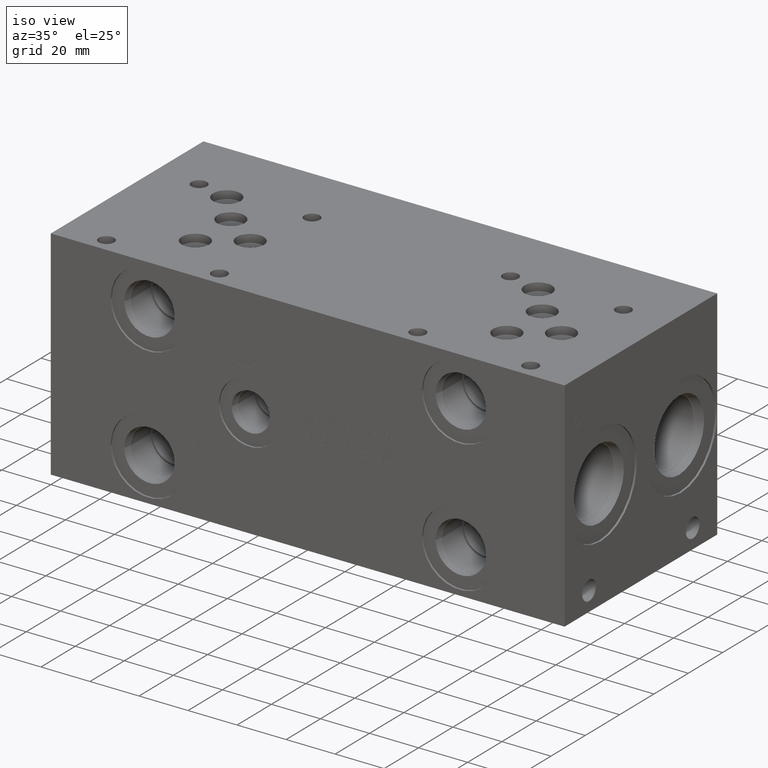
[diagram: clean part render]
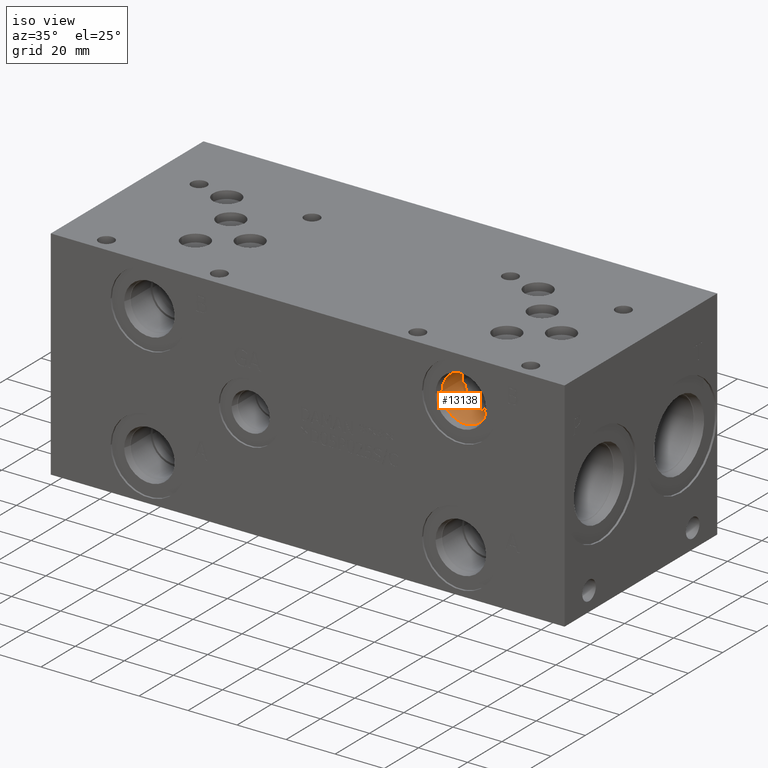
[diagram: same view with one face highlighted and labeled with its STEP entity id]
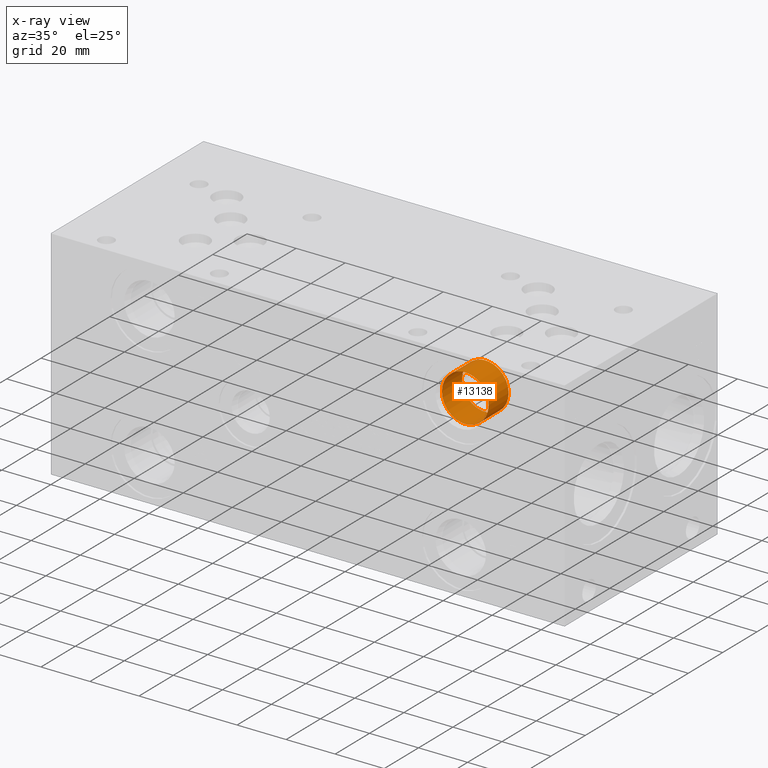
[diagram: x-ray of the same camera — body ghosted, the highlighted face saturated]
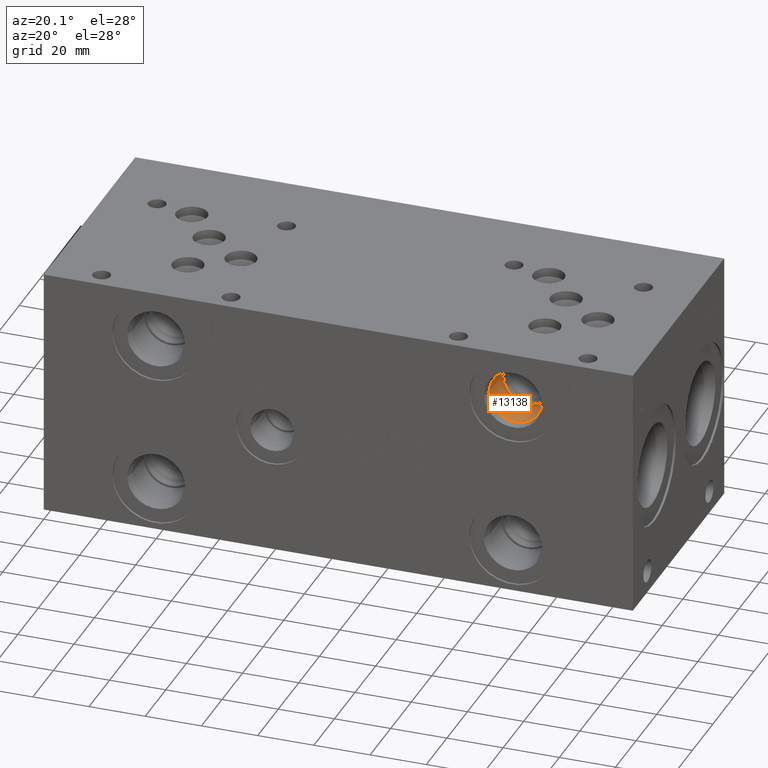
[diagram: same view with one face highlighted and labeled with its STEP entity id]
A machine part, iso view. The second image highlights one B-rep face of the part: STEP entity #13138.
The next image is the same camera in x-ray: the body ghosted, the highlighted face saturated — about 0% of this face is hidden behind the body in this view.
A second angle (auxiliary view) of the same face is appended — the face is thin or edge-on in the first view.
In plain terms, the highlighted cylindrical surface (bore or boss wall) has radius 9.525 mm, axis along (0, -1, 0).
Its self-contained STEP definition (entity closure, byte-faithful):
#123=CYLINDRICAL_SURFACE('',#13858,9.525);
#328=CIRCLE('',#13811,9.525);
#354=CIRCLE('',#13855,9.525);
#355=CIRCLE('',#13856,9.525);
#1714=FACE_OUTER_BOUND('',#2475,.T.);
#2475=EDGE_LOOP('',(#11288,#11289,#11290,#11291,#11292));
#3688=LINE('',#22538,#4856);
#4856=VECTOR('',#16424,9.525);
#6011=VERTEX_POINT('',#22441);
#6041=VERTEX_POINT('',#22531);
#6042=VERTEX_POINT('',#22532);
#7792=EDGE_CURVE('',#6011,#6011,#328,.T.);
#7833=EDGE_CURVE('',#6041,#6042,#354,.T.);
#7834=EDGE_CURVE('',#6042,#6041,#355,.T.);
#7836=EDGE_CURVE('',#6011,#6042,#3688,.T.);
#11288=ORIENTED_EDGE('',*,*,#7792,.T.);
#11289=ORIENTED_EDGE('',*,*,#7836,.T.);
#11290=ORIENTED_EDGE('',*,*,#7833,.F.);
#11291=ORIENTED_EDGE('',*,*,#7834,.F.);
#11292=ORIENTED_EDGE('',*,*,#7836,.F.);
#13138=ADVANCED_FACE('',(#1714),#123,.F.);
#13811=AXIS2_PLACEMENT_3D('',#22443,#16313,#16314);
#13855=AXIS2_PLACEMENT_3D('',#22533,#16416,#16417);
#13856=AXIS2_PLACEMENT_3D('',#22534,#16418,#16419);
#13858=AXIS2_PLACEMENT_3D('',#22537,#16422,#16423);
#16313=DIRECTION('center_axis',(0.,-1.,0.));
#16314=DIRECTION('ref_axis',(1.,0.,0.));
#16416=DIRECTION('center_axis',(0.,-1.,0.));
#16417=DIRECTION('ref_axis',(1.,0.,0.));
#16418=DIRECTION('center_axis',(0.,-1.,0.));
#16419=DIRECTION('ref_axis',(1.,0.,0.));
#16422=DIRECTION('center_axis',(0.,-1.,0.));
#16423=DIRECTION('ref_axis',(1.,0.,0.));
#16424=DIRECTION('',(0.,1.,0.));
#22441=CARTESIAN_POINT('',(157.1498,3.4036,71.4248));
#22443=CARTESIAN_POINT('Origin',(166.6748,3.4036,71.4248));
#22531=CARTESIAN_POINT('',(176.1998,15.0622,71.4248));
#22532=CARTESIAN_POINT('',(157.1498,15.0622,71.4248));
#22533=CARTESIAN_POINT('Origin',(166.6748,15.0622,71.4248));
#22534=CARTESIAN_POINT('Origin',(166.6748,15.0622,71.4248));
#22537=CARTESIAN_POINT('Origin',(166.6748,7.5311,71.4248));
#22538=CARTESIAN_POINT('',(157.1498,7.5311,71.4248));